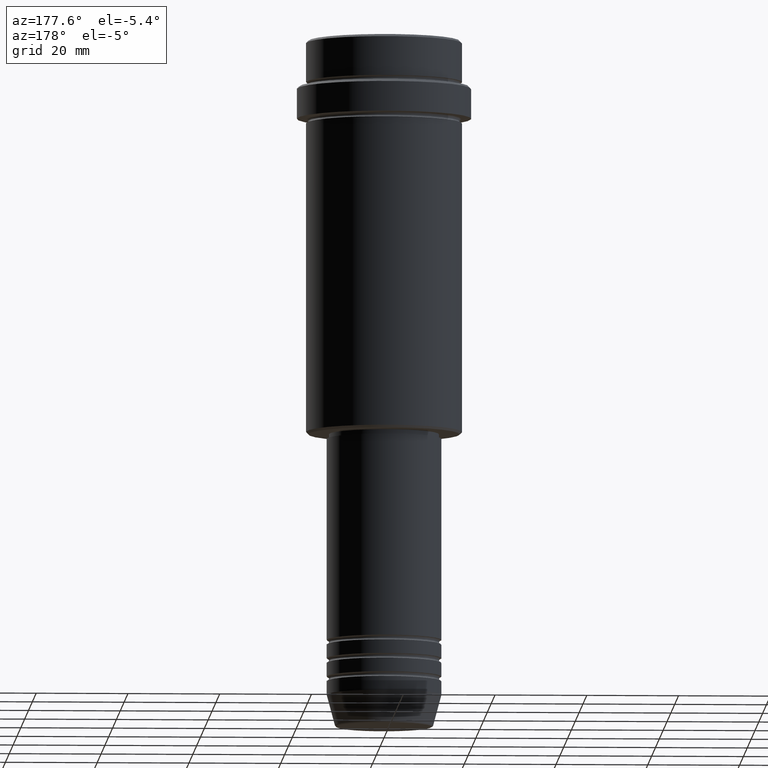
[diagram: clean part render]
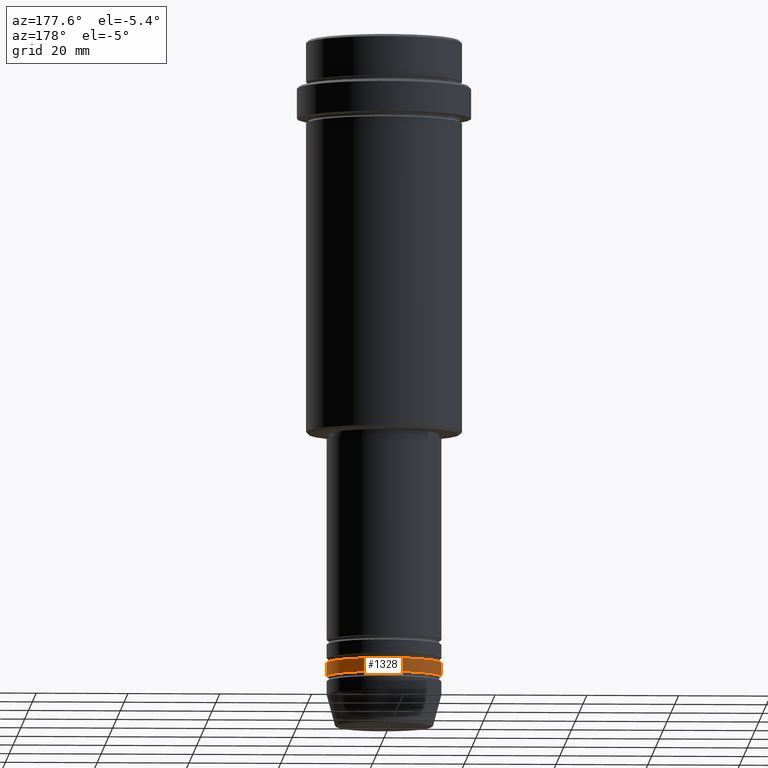
[diagram: same view with one face highlighted and labeled with its STEP entity id]
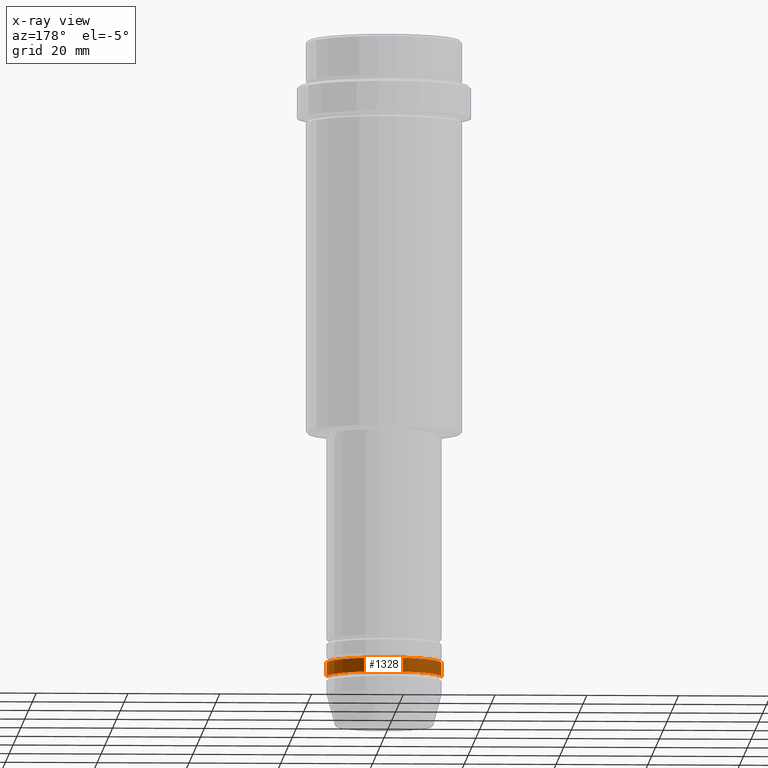
[diagram: x-ray of the same camera — body ghosted, the highlighted face saturated]
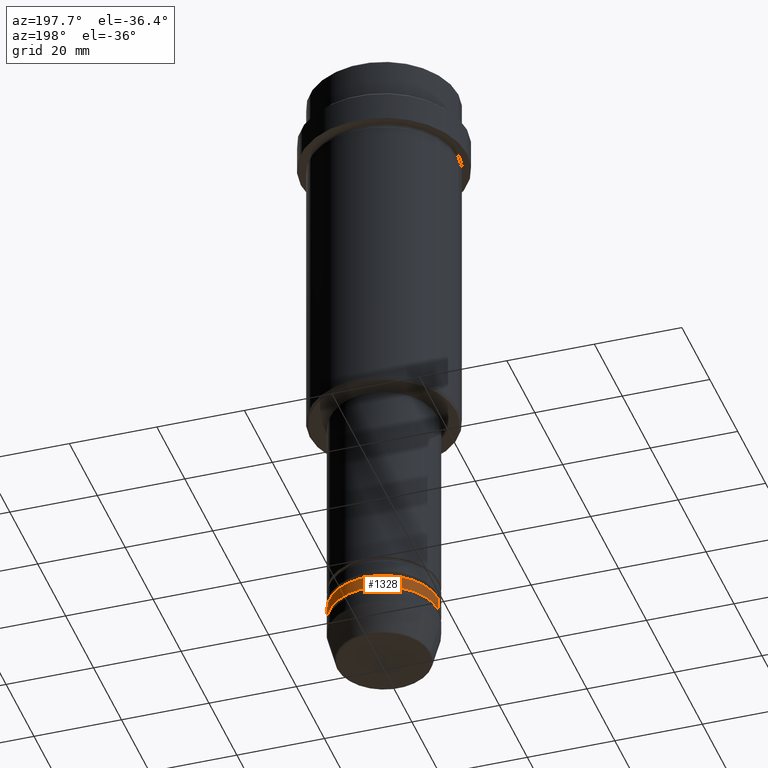
[diagram: same view with one face highlighted and labeled with its STEP entity id]
A machine part, auxiliary view. The second image highlights one B-rep face of the part: STEP entity #1328.
The next image is the same camera in x-ray: the body ghosted, the highlighted face saturated — about 0% of this face is hidden behind the body in this view.
A second angle (auxiliary view) of the same face is appended — the face is thin or edge-on in the first view.
In plain terms, the highlighted cylindrical surface (partial cylindrical patch) has radius 12.5 mm, axis along (-0, -0, 1).
Its self-contained STEP definition (entity closure, byte-faithful):
#22 = CARTESIAN_POINT ( 'NONE',  ( 0.000000000000000000, 0.000000000000000000, -138.9999999999999147 ) ) ;
#103 = ORIENTED_EDGE ( 'NONE', *, *, #664, .T. ) ;
#120 = EDGE_CURVE ( 'NONE', #1280, #777, #747, .T. ) ;
#123 = AXIS2_PLACEMENT_3D ( 'NONE', #1075, #186, #1288 ) ;
#136 = VERTEX_POINT ( 'NONE', #752 ) ;
#186 = DIRECTION ( 'NONE',  ( -0.000000000000000000, -0.000000000000000000, 1.000000000000000000 ) ) ;
#244 = DIRECTION ( 'NONE',  ( 1.000000000000000000, 0.000000000000000000, 0.000000000000000000 ) ) ;
#345 = CARTESIAN_POINT ( 'NONE',  ( 0.000000000000000000, 0.000000000000000000, 0.000000000000000000 ) ) ;
#356 = CARTESIAN_POINT ( 'NONE',  ( 12.50000000000000000, 0.000000000000000000, -135.9999999999998863 ) ) ;
#454 = CARTESIAN_POINT ( 'NONE',  ( -12.50000000000000000, 1.530808498934191521E-15, -138.9999999999999147 ) ) ;
#475 = VECTOR ( 'NONE', #640, 1000.000000000000000 ) ;
#486 = ORIENTED_EDGE ( 'NONE', *, *, #120, .F. ) ;
#538 = DIRECTION ( 'NONE',  ( -0.000000000000000000, -0.000000000000000000, 1.000000000000000000 ) ) ;
#541 = EDGE_CURVE ( 'NONE', #136, #1188, #687, .T. ) ;
#555 = VECTOR ( 'NONE', #987, 1000.000000000000000 ) ;
#568 = CARTESIAN_POINT ( 'NONE',  ( -12.50000000000000000, 1.530808498934191521E-15, 0.000000000000000000 ) ) ;
#640 = DIRECTION ( 'NONE',  ( -0.000000000000000000, -0.000000000000000000, 1.000000000000000000 ) ) ;
#664 = EDGE_CURVE ( 'NONE', #1188, #777, #1216, .T. ) ;
#687 = CIRCLE ( 'NONE', #1149, 12.50000000000000000 ) ;
#747 = CIRCLE ( 'NONE', #123, 12.50000000000000000 ) ;
#748 = AXIS2_PLACEMENT_3D ( 'NONE', #345, #538, #1103 ) ;
#752 = CARTESIAN_POINT ( 'NONE',  ( 12.50000000000000000, 0.000000000000000000, -138.9999999999999147 ) ) ;
#777 = VERTEX_POINT ( 'NONE', #1022 ) ;
#822 = EDGE_LOOP ( 'NONE', ( #906, #103, #486, #1262 ) ) ;
#839 = LINE ( 'NONE', #944, #475 ) ;
#877 = DIRECTION ( 'NONE',  ( -0.000000000000000000, -0.000000000000000000, 1.000000000000000000 ) ) ;
#906 = ORIENTED_EDGE ( 'NONE', *, *, #541, .T. ) ;
#944 = CARTESIAN_POINT ( 'NONE',  ( 12.50000000000000000, 0.000000000000000000, 0.000000000000000000 ) ) ;
#969 = EDGE_CURVE ( 'NONE', #136, #1280, #839, .T. ) ;
#987 = DIRECTION ( 'NONE',  ( -0.000000000000000000, -0.000000000000000000, 1.000000000000000000 ) ) ;
#1022 = CARTESIAN_POINT ( 'NONE',  ( -12.50000000000000000, 1.530808498934191521E-15, -135.9999999999998863 ) ) ;
#1075 = CARTESIAN_POINT ( 'NONE',  ( 0.000000000000000000, 0.000000000000000000, -135.9999999999998863 ) ) ;
#1103 = DIRECTION ( 'NONE',  ( 1.000000000000000000, 0.000000000000000000, 0.000000000000000000 ) ) ;
#1149 = AXIS2_PLACEMENT_3D ( 'NONE', #22, #877, #244 ) ;
#1188 = VERTEX_POINT ( 'NONE', #454 ) ;
#1216 = LINE ( 'NONE', #568, #555 ) ;
#1262 = ORIENTED_EDGE ( 'NONE', *, *, #969, .F. ) ;
#1280 = VERTEX_POINT ( 'NONE', #356 ) ;
#1288 = DIRECTION ( 'NONE',  ( 1.000000000000000000, 0.000000000000000000, 0.000000000000000000 ) ) ;
#1328 = ADVANCED_FACE ( 'NONE', ( #1402 ), #1336, .T. ) ;
#1336 = CYLINDRICAL_SURFACE ( 'NONE', #748, 12.50000000000000000 ) ;
#1402 = FACE_OUTER_BOUND ( 'NONE', #822, .T. ) ;